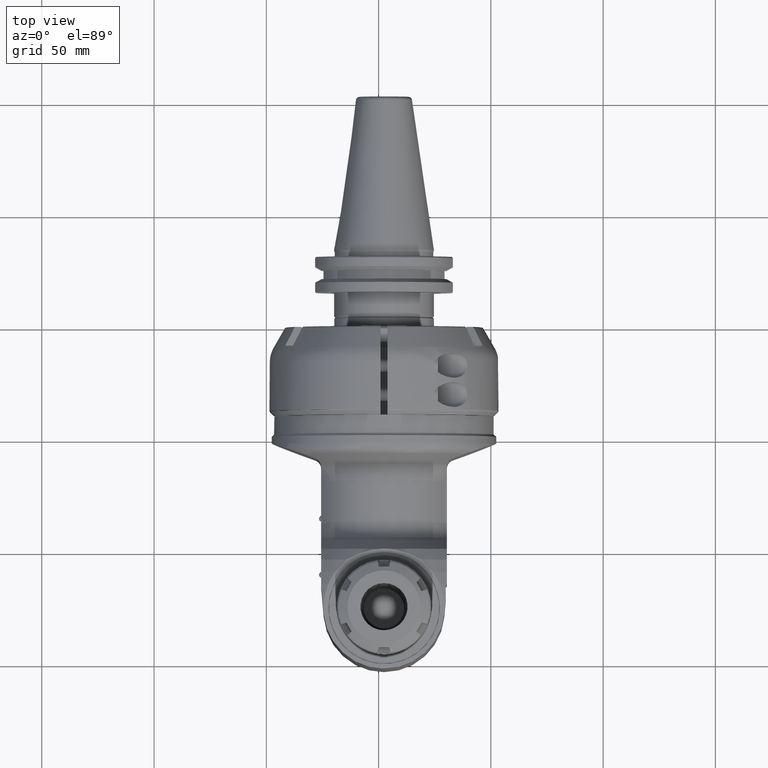
[diagram: clean part render]
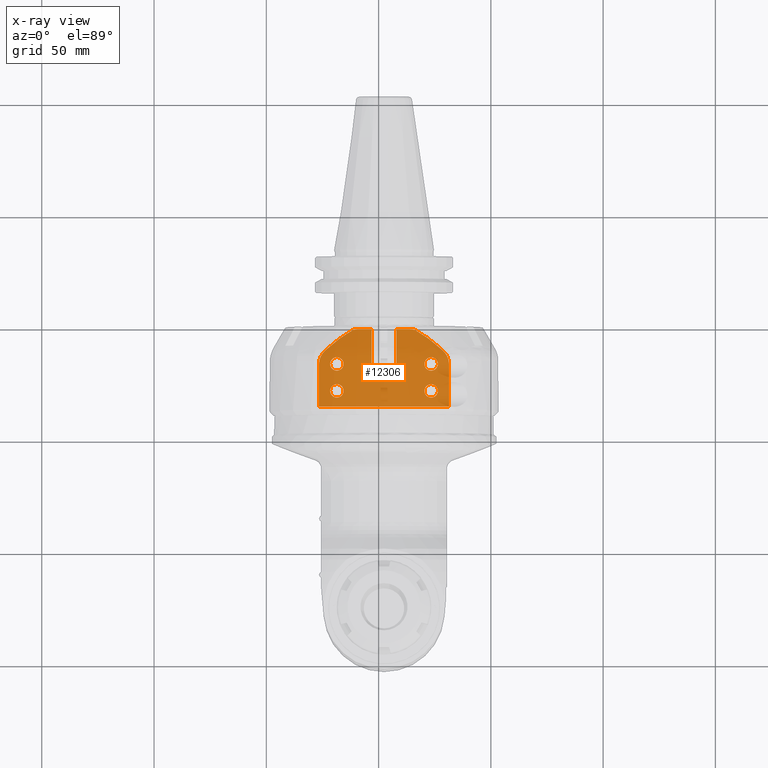
[diagram: x-ray — body ghosted, one internal face saturated and labeled with its STEP entity id]
A machine part, top view, then the same camera in x-ray: the body is ghosted and one INTERNAL B-rep face — a face not visible from any outside direction — is saturated and labeled: STEP entity #12306.
In plain terms, the highlighted planar face has unit normal (0, 0, 1).
Its self-contained STEP definition (entity closure, byte-faithful):
#201=FACE_BOUND('',#1981,.T.);
#202=FACE_BOUND('',#1982,.T.);
#203=FACE_BOUND('',#1983,.T.);
#204=FACE_BOUND('',#1984,.T.);
#338=(
BOUNDED_CURVE()
B_SPLINE_CURVE(2,(#18691,#18692,#18693),.UNSPECIFIED.,.F.,.F.)
B_SPLINE_CURVE_WITH_KNOTS((3,3),(-4.80707705791519,-2.95268713046296),
 .UNSPECIFIED.)
CURVE()
GEOMETRIC_REPRESENTATION_ITEM()
RATIONAL_B_SPLINE_CURVE((1.01149371983583,1.03091361245284,1.03364016221379))
REPRESENTATION_ITEM('')
);
#339=(
BOUNDED_CURVE()
B_SPLINE_CURVE(2,(#18727,#18728,#18729),.UNSPECIFIED.,.F.,.F.)
B_SPLINE_CURVE_WITH_KNOTS((3,3),(-2.34692632425289,-0.492536396799847),
 .UNSPECIFIED.)
CURVE()
GEOMETRIC_REPRESENTATION_ITEM()
RATIONAL_B_SPLINE_CURVE((1.0336401622138,1.03091361245284,1.01149371983583))
REPRESENTATION_ITEM('')
);
#490=B_SPLINE_CURVE_WITH_KNOTS('',3,(#18682,#18683,#18684,#18685,#18686,
#18687,#18688,#18689),.UNSPECIFIED.,.F.,.F.,(4,2,2,4),(-0.358634976952315,
-0.215521476335448,-0.0724079757185815,-0.0641760154831719),
 .UNSPECIFIED.);
#491=B_SPLINE_CURVE_WITH_KNOTS('',3,(#18695,#18696,#18697,#18698,#18699,
#18700,#18701,#18702,#18703,#18704,#18705,#18706),.UNSPECIFIED.,.F.,.F.,
(4,2,2,2,2,4),(9.64307894084854,9.78637133350369,9.92966372615884,10.1071835186264,
10.2847033110939,10.2927281694849),.UNSPECIFIED.);
#492=B_SPLINE_CURVE_WITH_KNOTS('',3,(#18714,#18715,#18716,#18717,#18718,
#18719,#18720,#18721,#18722,#18723,#18724,#18725),.UNSPECIFIED.,.F.,.F.,
(4,2,2,2,2,4),(-3.21435964694951,-3.07106725429436,-2.92777486163921,-2.75025506917168,
-2.57273527670416,-2.56471041831384),.UNSPECIFIED.);
#493=B_SPLINE_CURVE_WITH_KNOTS('',3,(#18731,#18732,#18733,#18734,#18735,
#18736,#18737,#18738),.UNSPECIFIED.,.F.,.F.,(4,2,2,4),(-1.64494113619689,
-1.63670917596148,-1.49359567534462,-1.35048217472775),.UNSPECIFIED.);
#651=PLANE('',#13176);
#1192=FACE_OUTER_BOUND('',#1980,.T.);
#1980=EDGE_LOOP('',(#8385,#8386,#8387,#8388,#8389,#8390,#8391,#8392,#8393,
#8394,#8395,#8396,#8397,#8398));
#1981=EDGE_LOOP('',(#8399));
#1982=EDGE_LOOP('',(#8400));
#1983=EDGE_LOOP('',(#8401));
#1984=EDGE_LOOP('',(#8402));
#2905=CIRCLE('',#13175,3.);
#2906=CIRCLE('',#13177,3.);
#2907=CIRCLE('',#13178,3.);
#2908=CIRCLE('',#13179,3.);
#3650=LINE('',#18674,#4445);
#3651=LINE('',#18676,#4446);
#3652=LINE('',#18678,#4447);
#3653=LINE('',#18680,#4448);
#3654=LINE('',#18708,#4449);
#3655=LINE('',#18710,#4450);
#3656=LINE('',#18712,#4451);
#3657=LINE('',#18739,#4452);
#4445=VECTOR('',#14754,17.);
#4446=VECTOR('',#14755,11.);
#4447=VECTOR('',#14756,17.);
#4448=VECTOR('',#14757,5.52390627884);
#4449=VECTOR('',#14758,19.16025403784);
#4450=VECTOR('',#14759,57.86190456596);
#4451=VECTOR('',#14760,19.16025403784);
#4452=VECTOR('',#14761,5.52390627884);
#5241=VERTEX_POINT('',#18668);
#5242=VERTEX_POINT('',#18672);
#5243=VERTEX_POINT('',#18673);
#5244=VERTEX_POINT('',#18675);
#5245=VERTEX_POINT('',#18677);
#5246=VERTEX_POINT('',#18679);
#5247=VERTEX_POINT('',#18681);
#5248=VERTEX_POINT('',#18690);
#5249=VERTEX_POINT('',#18694);
#5250=VERTEX_POINT('',#18707);
#5251=VERTEX_POINT('',#18709);
#5252=VERTEX_POINT('',#18711);
#5253=VERTEX_POINT('',#18713);
#5254=VERTEX_POINT('',#18726);
#5255=VERTEX_POINT('',#18730);
#5256=VERTEX_POINT('',#18740);
#5257=VERTEX_POINT('',#18742);
#5258=VERTEX_POINT('',#18744);
#6492=EDGE_CURVE('',#5241,#5241,#2905,.T.);
#6493=EDGE_CURVE('',#5242,#5243,#3650,.T.);
#6494=EDGE_CURVE('',#5242,#5244,#3651,.T.);
#6495=EDGE_CURVE('',#5245,#5244,#3652,.T.);
#6496=EDGE_CURVE('',#5246,#5245,#3653,.T.);
#6497=EDGE_CURVE('',#5246,#5247,#490,.T.);
#6498=EDGE_CURVE('',#5247,#5248,#338,.T.);
#6499=EDGE_CURVE('',#5249,#5248,#491,.T.);
#6500=EDGE_CURVE('',#5250,#5249,#3654,.T.);
#6501=EDGE_CURVE('',#5251,#5250,#3655,.T.);
#6502=EDGE_CURVE('',#5252,#5251,#3656,.T.);
#6503=EDGE_CURVE('',#5252,#5253,#492,.T.);
#6504=EDGE_CURVE('',#5253,#5254,#339,.T.);
#6505=EDGE_CURVE('',#5254,#5255,#493,.T.);
#6506=EDGE_CURVE('',#5243,#5255,#3657,.T.);
#6507=EDGE_CURVE('',#5256,#5256,#2906,.T.);
#6508=EDGE_CURVE('',#5257,#5257,#2907,.T.);
#6509=EDGE_CURVE('',#5258,#5258,#2908,.T.);
#8385=ORIENTED_EDGE('',*,*,#6493,.F.);
#8386=ORIENTED_EDGE('',*,*,#6494,.T.);
#8387=ORIENTED_EDGE('',*,*,#6495,.F.);
#8388=ORIENTED_EDGE('',*,*,#6496,.F.);
#8389=ORIENTED_EDGE('',*,*,#6497,.T.);
#8390=ORIENTED_EDGE('',*,*,#6498,.T.);
#8391=ORIENTED_EDGE('',*,*,#6499,.F.);
#8392=ORIENTED_EDGE('',*,*,#6500,.F.);
#8393=ORIENTED_EDGE('',*,*,#6501,.F.);
#8394=ORIENTED_EDGE('',*,*,#6502,.F.);
#8395=ORIENTED_EDGE('',*,*,#6503,.T.);
#8396=ORIENTED_EDGE('',*,*,#6504,.T.);
#8397=ORIENTED_EDGE('',*,*,#6505,.T.);
#8398=ORIENTED_EDGE('',*,*,#6506,.F.);
#8399=ORIENTED_EDGE('',*,*,#6507,.T.);
#8400=ORIENTED_EDGE('',*,*,#6508,.T.);
#8401=ORIENTED_EDGE('',*,*,#6509,.T.);
#8402=ORIENTED_EDGE('',*,*,#6492,.T.);
#12306=ADVANCED_FACE('',(#1192,#201,#202,#203,#204),#651,.F.);
#13175=AXIS2_PLACEMENT_3D('',#18670,#14750,#14751);
#13176=AXIS2_PLACEMENT_3D('',#18671,#14752,#14753);
#13177=AXIS2_PLACEMENT_3D('',#18741,#14762,#14763);
#13178=AXIS2_PLACEMENT_3D('',#18743,#14764,#14765);
#13179=AXIS2_PLACEMENT_3D('',#18745,#14766,#14767);
#14750=DIRECTION('center_axis',(0.,0.,1.));
#14751=DIRECTION('ref_axis',(-1.,0.,0.));
#14752=DIRECTION('center_axis',(0.,0.,1.));
#14753=DIRECTION('ref_axis',(-1.,0.,0.));
#14754=DIRECTION('',(0.,1.,0.));
#14755=DIRECTION('',(1.,0.,0.));
#14756=DIRECTION('',(0.,-1.,0.));
#14757=DIRECTION('',(-1.,0.,0.));
#14758=DIRECTION('',(0.,1.,0.));
#14759=DIRECTION('',(1.,0.,0.));
#14760=DIRECTION('',(0.,-1.,0.));
#14761=DIRECTION('',(-1.,0.,0.));
#14762=DIRECTION('center_axis',(0.,0.,1.));
#14763=DIRECTION('ref_axis',(-1.,0.,0.));
#14764=DIRECTION('center_axis',(0.,0.,1.));
#14765=DIRECTION('ref_axis',(0.,1.,0.));
#14766=DIRECTION('center_axis',(0.,0.,1.));
#14767=DIRECTION('ref_axis',(-1.,0.,0.));
#18668=CARTESIAN_POINT('',(21.,27.,-42.));
#18670=CARTESIAN_POINT('Origin',(21.,24.,-42.));
#18671=CARTESIAN_POINT('Origin',(-40.,31.,-42.));
#18672=CARTESIAN_POINT('',(-5.5,22.5,-42.));
#18673=CARTESIAN_POINT('',(-5.5,39.5,-42.));
#18674=CARTESIAN_POINT('',(-5.5,22.5,-42.));
#18675=CARTESIAN_POINT('',(5.5,22.5,-42.));
#18676=CARTESIAN_POINT('',(-5.5,22.5,-42.));
#18677=CARTESIAN_POINT('',(5.5,39.5,-42.));
#18678=CARTESIAN_POINT('',(5.5,39.5,-42.));
#18679=CARTESIAN_POINT('',(11.02390627884,39.5,-42.));
#18680=CARTESIAN_POINT('',(11.02390627884,39.5,-42.));
#18681=CARTESIAN_POINT('',(14.05299772923,39.,-42.));
#18682=CARTESIAN_POINT('Ctrl Pts',(11.0239062788384,39.5,-42.));
#18683=CARTESIAN_POINT('Ctrl Pts',(11.5009512808949,39.5,-42.));
#18684=CARTESIAN_POINT('Ctrl Pts',(12.0240251735043,39.4783397199212,-42.));
#18685=CARTESIAN_POINT('Ctrl Pts',(13.0478262450194,39.3473836494155,-42.));
#18686=CARTESIAN_POINT('Ctrl Pts',(13.550060975439,39.2501561177924,-42.));
#18687=CARTESIAN_POINT('Ctrl Pts',(14.0024827292246,39.0269532050338,-42.));
#18688=CARTESIAN_POINT('Ctrl Pts',(14.0276712101249,39.0139191405013,-42.));
#18689=CARTESIAN_POINT('Ctrl Pts',(14.0529977292292,38.9999999999985,-42.));
#18690=CARTESIAN_POINT('',(25.99230228245,30.16025403784,-42.));
#18691=CARTESIAN_POINT('Ctrl Pts',(14.0529977292256,38.9999999999919,-42.));
#18692=CARTESIAN_POINT('Ctrl Pts',(19.6974303643609,35.897889892267,-42.));
#18693=CARTESIAN_POINT('Ctrl Pts',(25.992302282447,30.1602540378376,-42.));
#18694=CARTESIAN_POINT('',(28.93095228298,24.16025403784,-42.));
#18695=CARTESIAN_POINT('Ctrl Pts',(28.9309522829789,24.16025403784,-42.));
#18696=CARTESIAN_POINT('Ctrl Pts',(28.9309522829789,24.6378953466905,-42.));
#18697=CARTESIAN_POINT('Ctrl Pts',(28.87705146055,25.1583204821385,-42.));
#18698=CARTESIAN_POINT('Ctrl Pts',(28.6499045087982,26.1732442267493,-42.));
#18699=CARTESIAN_POINT('Ctrl Pts',(28.4771000006664,26.667841623344,-42.));
#18700=CARTESIAN_POINT('Ctrl Pts',(28.0359301462016,27.6419719048386,-42.));
#18701=CARTESIAN_POINT('Ctrl Pts',(27.7052126152872,28.1987456633247,-42.));
#18702=CARTESIAN_POINT('Ctrl Pts',(26.9298007026917,29.2294889281588,-42.));
#18703=CARTESIAN_POINT('Ctrl Pts',(26.4861630058264,29.7042529379174,-42.));
#18704=CARTESIAN_POINT('Ctrl Pts',(26.0319319853753,30.124008073782,-42.));
#18705=CARTESIAN_POINT('Ctrl Pts',(26.0121730475889,30.1421422770287,-42.));
#18706=CARTESIAN_POINT('Ctrl Pts',(25.9923022824498,30.1602540378398,-42.));
#18707=CARTESIAN_POINT('',(28.93095228298,5.,-42.));
#18708=CARTESIAN_POINT('',(28.93095228298,5.,-42.));
#18709=CARTESIAN_POINT('',(-28.93095228298,5.,-42.));
#18710=CARTESIAN_POINT('',(-28.93095228298,5.,-42.));
#18711=CARTESIAN_POINT('',(-28.93095228298,24.16025403784,-42.));
#18712=CARTESIAN_POINT('',(-28.93095228298,24.16025403784,-42.));
#18713=CARTESIAN_POINT('',(-25.99230228246,30.16025403784,-42.));
#18714=CARTESIAN_POINT('Ctrl Pts',(-28.9309522829789,24.16025403784,-42.));
#18715=CARTESIAN_POINT('Ctrl Pts',(-28.9309522829789,24.6378953466905,-42.));
#18716=CARTESIAN_POINT('Ctrl Pts',(-28.87705146055,25.1583204821385,-42.));
#18717=CARTESIAN_POINT('Ctrl Pts',(-28.6499045087982,26.1732442267493,-42.));
#18718=CARTESIAN_POINT('Ctrl Pts',(-28.4771000006664,26.667841623344,-42.));
#18719=CARTESIAN_POINT('Ctrl Pts',(-28.0359301462016,27.6419719048386,-42.));
#18720=CARTESIAN_POINT('Ctrl Pts',(-27.7052126152872,28.1987456633247,-42.));
#18721=CARTESIAN_POINT('Ctrl Pts',(-26.9298007026917,29.2294889281588,-42.));
#18722=CARTESIAN_POINT('Ctrl Pts',(-26.4861630058264,29.7042529379174,-42.));
#18723=CARTESIAN_POINT('Ctrl Pts',(-26.0319319853771,30.1240080737804,-42.));
#18724=CARTESIAN_POINT('Ctrl Pts',(-26.0121730475925,30.1421422770254,-42.));
#18725=CARTESIAN_POINT('Ctrl Pts',(-25.9923022824553,30.1602540378348,-42.));
#18726=CARTESIAN_POINT('',(-14.05299772923,39.,-42.));
#18727=CARTESIAN_POINT('Ctrl Pts',(-25.9923022824525,30.1602540378326,-42.));
#18728=CARTESIAN_POINT('Ctrl Pts',(-19.6974303643633,35.8978898922657,-42.));
#18729=CARTESIAN_POINT('Ctrl Pts',(-14.0529977292256,38.999999999992,-42.));
#18730=CARTESIAN_POINT('',(-11.02390627884,39.5,-42.));
#18731=CARTESIAN_POINT('Ctrl Pts',(-14.0529977292292,38.9999999999985,-42.));
#18732=CARTESIAN_POINT('Ctrl Pts',(-14.0276712101249,39.0139191405013,-42.));
#18733=CARTESIAN_POINT('Ctrl Pts',(-14.0024827292246,39.0269532050338,-42.));
#18734=CARTESIAN_POINT('Ctrl Pts',(-13.550060975439,39.2501561177924,-42.));
#18735=CARTESIAN_POINT('Ctrl Pts',(-13.0478262450194,39.3473836494155,-42.));
#18736=CARTESIAN_POINT('Ctrl Pts',(-12.0240251735043,39.4783397199212,-42.));
#18737=CARTESIAN_POINT('Ctrl Pts',(-11.5009512808949,39.5,-42.));
#18738=CARTESIAN_POINT('Ctrl Pts',(-11.0239062788384,39.5,-42.));
#18739=CARTESIAN_POINT('',(-5.5,39.5,-42.));
#18740=CARTESIAN_POINT('',(-18.,24.,-42.));
#18741=CARTESIAN_POINT('Origin',(-21.,24.,-42.));
#18742=CARTESIAN_POINT('',(-21.,15.,-42.));
#18743=CARTESIAN_POINT('Origin',(-21.,12.,-42.));
#18744=CARTESIAN_POINT('',(24.,12.,-42.));
#18745=CARTESIAN_POINT('Origin',(21.,12.,-42.));